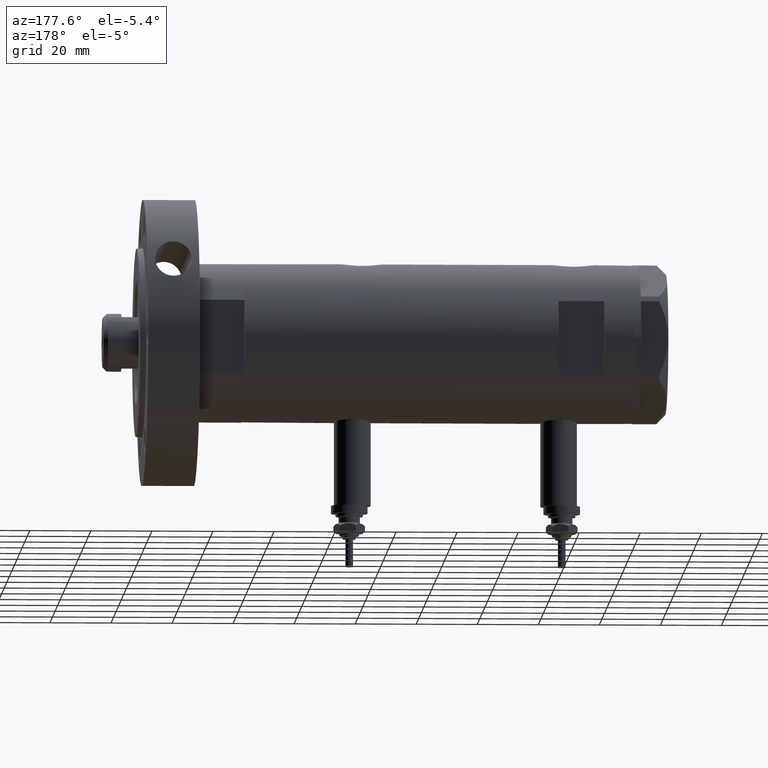
[diagram: clean part render]
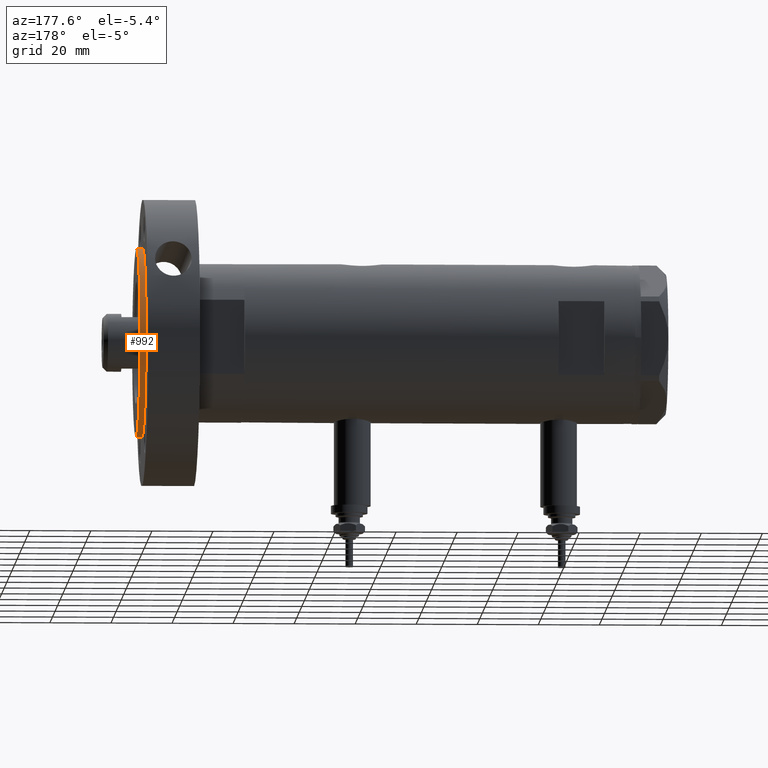
[diagram: same view with one face highlighted and labeled with its STEP entity id]
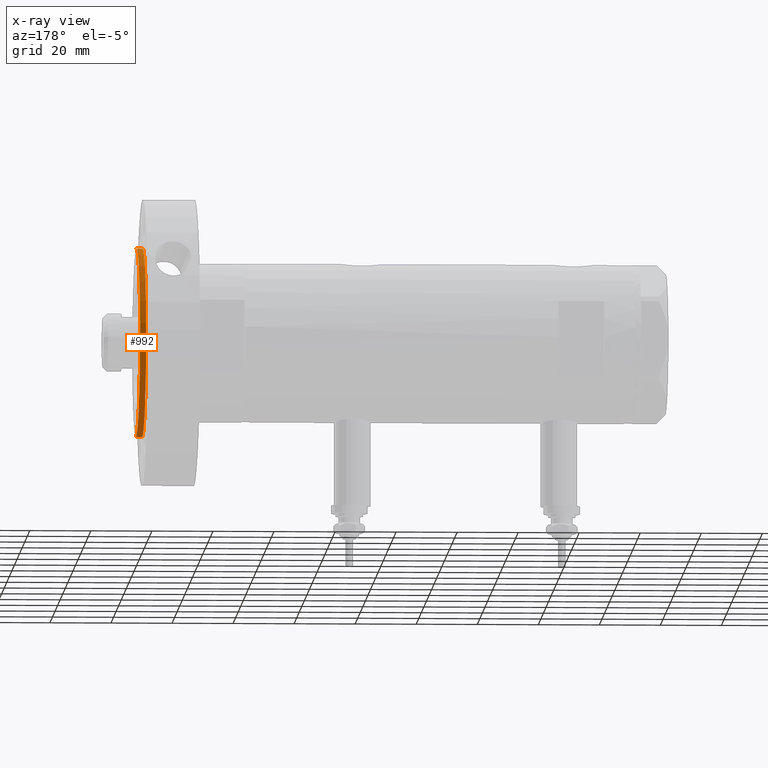
[diagram: x-ray of the same camera — body ghosted, the highlighted face saturated]
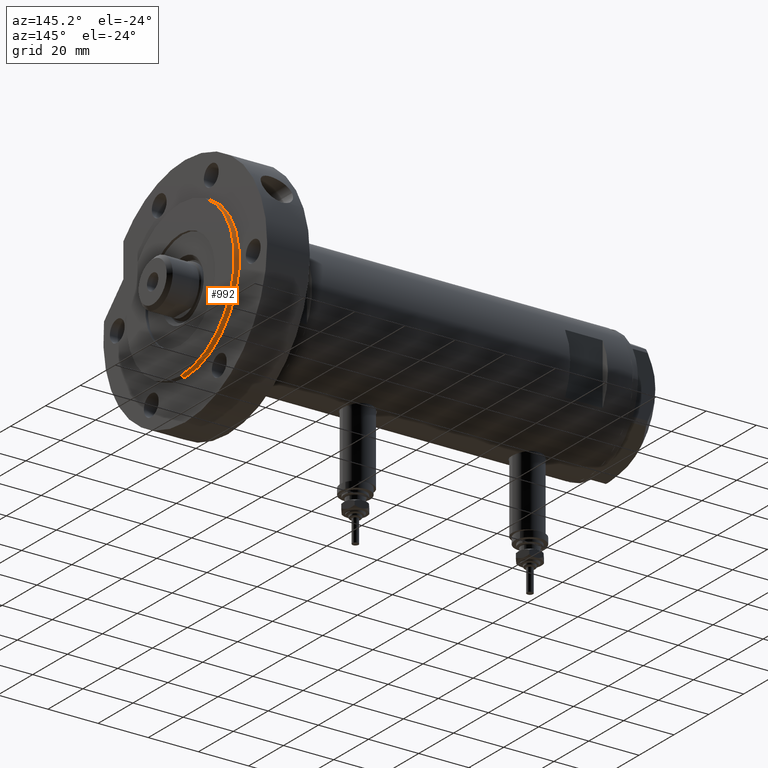
[diagram: same view with one face highlighted and labeled with its STEP entity id]
A machine part, auxiliary view. The second image highlights one B-rep face of the part: STEP entity #992.
The next image is the same camera in x-ray: the body ghosted, the highlighted face saturated — about 0% of this face is hidden behind the body in this view.
A second angle (auxiliary view) of the same face is appended — the face is thin or edge-on in the first view.
In plain terms, the highlighted cylindrical surface (partial cylindrical patch) has radius 31 mm, axis along (-1, -0, 0).
Its self-contained STEP definition (entity closure, byte-faithful):
#3 = LINE ( 'NONE', #6807, #6562 ) ;
#4 = ORIENTED_EDGE ( 'NONE', *, *, #419, .T. ) ;
#195 = DIRECTION ( 'NONE',  ( 1.000000000000000000, 0.000000000000000000, 0.000000000000000000 ) ) ;
#225 = EDGE_CURVE ( 'NONE', #1156, #7204, #1427, .T. ) ;
#358 = CYLINDRICAL_SURFACE ( 'NONE', #4640, 31.00000000000000711 ) ;
#419 = EDGE_CURVE ( 'NONE', #6376, #7045, #1557, .T. ) ;
#668 = DIRECTION ( 'NONE',  ( 0.000000000000000000, 0.000000000000000000, 1.000000000000000000 ) ) ;
#951 = ORIENTED_EDGE ( 'NONE', *, *, #6292, .T. ) ;
#956 = FACE_OUTER_BOUND ( 'NONE', #7352, .T. ) ;
#992 = ADVANCED_FACE ( 'NONE', ( #956 ), #358, .T. ) ;
#1040 = CARTESIAN_POINT ( 'NONE',  ( -31.00000000000000711, 0.000000000000000000, 19.00000000000000355 ) ) ;
#1071 = CARTESIAN_POINT ( 'NONE',  ( 0.000000000000000000, 0.000000000000000000, 19.00000000000000355 ) ) ;
#1156 = VERTEX_POINT ( 'NONE', #2896 ) ;
#1283 = DIRECTION ( 'NONE',  ( -0.000000000000000000, -0.000000000000000000, -1.000000000000000000 ) ) ;
#1427 = CIRCLE ( 'NONE', #3317, 31.00000000000000711 ) ;
#1557 = CIRCLE ( 'NONE', #4634, 31.00000000000000711 ) ;
#1663 = LINE ( 'NONE', #1040, #6073 ) ;
#1782 = CARTESIAN_POINT ( 'NONE',  ( 0.000000000000000000, 0.000000000000000000, 17.00000000000000000 ) ) ;
#1912 = DIRECTION ( 'NONE',  ( 1.000000000000000000, 0.000000000000000000, 0.000000000000000000 ) ) ;
#2532 = EDGE_CURVE ( 'NONE', #7204, #7045, #3, .T. ) ;
#2896 = CARTESIAN_POINT ( 'NONE',  ( -31.00000000000000711, 0.000000000000000000, 19.00000000000000355 ) ) ;
#3317 = AXIS2_PLACEMENT_3D ( 'NONE', #5646, #668, #195 ) ;
#3559 = CARTESIAN_POINT ( 'NONE',  ( -31.00000000000000711, 0.000000000000000000, 17.00000000000000000 ) ) ;
#4081 = ORIENTED_EDGE ( 'NONE', *, *, #2532, .F. ) ;
#4308 = CARTESIAN_POINT ( 'NONE',  ( 31.00000000000000711, 3.796405077356795904E-15, 19.00000000000000355 ) ) ;
#4634 = AXIS2_PLACEMENT_3D ( 'NONE', #1782, #7408, #1912 ) ;
#4640 = AXIS2_PLACEMENT_3D ( 'NONE', #1071, #1283, #5612 ) ;
#5612 = DIRECTION ( 'NONE',  ( -1.000000000000000000, 0.000000000000000000, 0.000000000000000000 ) ) ;
#5646 = CARTESIAN_POINT ( 'NONE',  ( 0.000000000000000000, 0.000000000000000000, 19.00000000000000355 ) ) ;
#5863 = DIRECTION ( 'NONE',  ( -0.000000000000000000, -0.000000000000000000, -1.000000000000000000 ) ) ;
#5884 = ORIENTED_EDGE ( 'NONE', *, *, #225, .F. ) ;
#6073 = VECTOR ( 'NONE', #5863, 1000.000000000000000 ) ;
#6292 = EDGE_CURVE ( 'NONE', #1156, #6376, #1663, .T. ) ;
#6376 = VERTEX_POINT ( 'NONE', #3559 ) ;
#6562 = VECTOR ( 'NONE', #7363, 1000.000000000000000 ) ;
#6807 = CARTESIAN_POINT ( 'NONE',  ( 31.00000000000000711, 3.796405077356795904E-15, 19.00000000000000355 ) ) ;
#7045 = VERTEX_POINT ( 'NONE', #7803 ) ;
#7204 = VERTEX_POINT ( 'NONE', #4308 ) ;
#7352 = EDGE_LOOP ( 'NONE', ( #4081, #5884, #951, #4 ) ) ;
#7363 = DIRECTION ( 'NONE',  ( -0.000000000000000000, -0.000000000000000000, -1.000000000000000000 ) ) ;
#7408 = DIRECTION ( 'NONE',  ( 0.000000000000000000, 0.000000000000000000, 1.000000000000000000 ) ) ;
#7803 = CARTESIAN_POINT ( 'NONE',  ( 31.00000000000000711, 3.796405077356795904E-15, 17.00000000000000000 ) ) ;